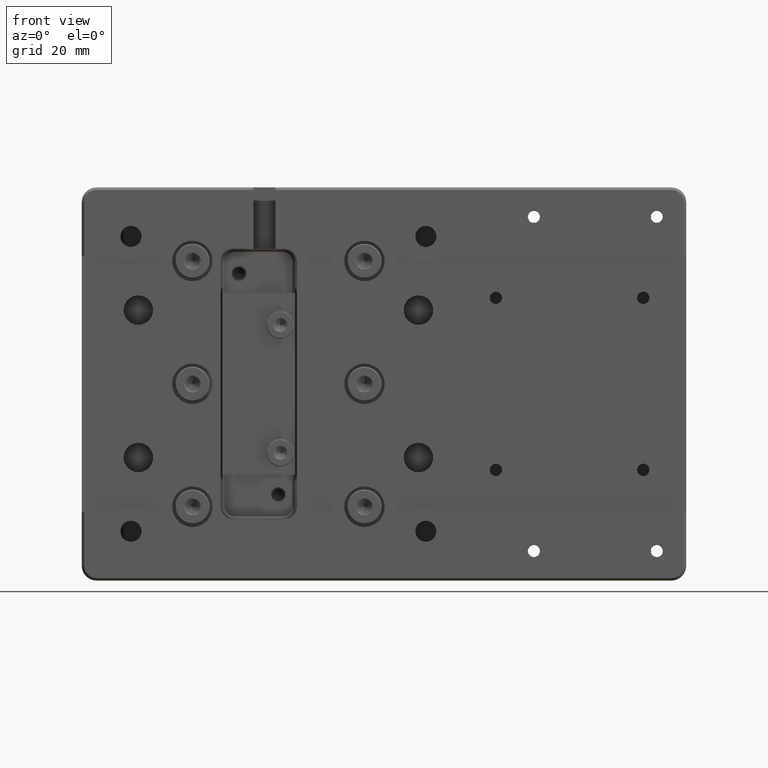
[diagram: clean part render]
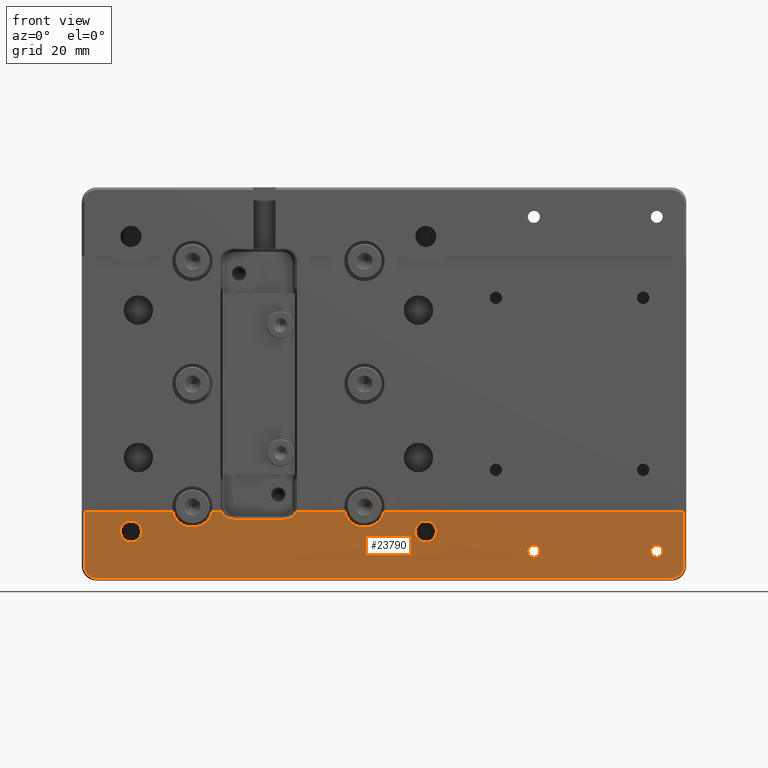
[diagram: same view with one face highlighted and labeled with its STEP entity id]
A machine part, front view. The second image highlights one B-rep face of the part: STEP entity #23790.
In plain terms, the highlighted planar face has unit normal (0, -1, 0).
Its self-contained STEP definition (entity closure, byte-faithful):
#264 = EDGE_CURVE ( 'NONE', #26858, #57207, #11762, .T. ) ;
#477 = VERTEX_POINT ( 'NONE', #22711 ) ;
#636 = CARTESIAN_POINT ( 'NONE',  ( -27.85000000000000500, -8.000000000000000000, -30.00000000000000000 ) ) ;
#922 = B_SPLINE_CURVE_WITH_KNOTS ( 'NONE', 3,
 ( #52332, #47263, #57407, #27253 ),
 .UNSPECIFIED., .F., .F.,
 ( 4, 4 ),
 ( 0.0000000000000000000, 1.000000000000000000 ),
 .UNSPECIFIED. ) ;
#1084 = ORIENTED_EDGE ( 'NONE', *, *, #34701, .T. ) ;
#1169 = CARTESIAN_POINT ( 'NONE',  ( 78.25000000000000000, -8.000000000000000000, -33.83405053889261900 ) ) ;
#1231 = CARTESIAN_POINT ( 'NONE',  ( 78.25000000000000000, -8.000000000000000000, -34.00000000000000000 ) ) ;
#1264 = ORIENTED_EDGE ( 'NONE', *, *, #53587, .T. ) ;
#1401 = CARTESIAN_POINT ( 'NONE',  ( -39.49999842881397400, -8.000000000000000000, -37.33133440661036000 ) ) ;
#1502 = CARTESIAN_POINT ( 'NONE',  ( -32.09544699829974900, -8.000000000000001800, -30.55955342919467200 ) ) ;
#1730 = CARTESIAN_POINT ( 'NONE',  ( 53.00078496853810600, -8.000000000000000000, -34.76687973169981700 ) ) ;
#2024 = ORIENTED_EDGE ( 'NONE', *, *, #56547, .T. ) ;
#2080 = ORIENTED_EDGE ( 'NONE', *, *, #47686, .T. ) ;
#2094 = VERTEX_POINT ( 'NONE', #35768 ) ;
#2172 = CARTESIAN_POINT ( 'NONE',  ( -15.32347828787214200, -8.000000000000000000, -28.53414124494987200 ) ) ;
#2256 = CARTESIAN_POINT ( 'NONE',  ( -28.27842760289007600, -8.000000000000001800, -31.31888441265888500 ) ) ;
#2509 = B_SPLINE_CURVE_WITH_KNOTS ( 'NONE', 3,
 ( #43875, #53985, #28899, #64161, #33961, #3762, #39039, #8844, #44092, #13924 ),
 .UNSPECIFIED., .F., .F.,
 ( 4, 2, 2, 2, 4 ),
 ( 0.0000000000000000000, 0.2500000000000000000, 0.5000000000000000000, 0.7500000000000000000, 1.000000000000000000 ),
 .UNSPECIFIED. ) ;
#2602 = CARTESIAN_POINT ( 'NONE',  ( 28.91401467003015600, -8.000000000000000000, -28.12276500850121200 ) ) ;
#2650 = CARTESIAN_POINT ( 'NONE',  ( 82.49999999888667900, -8.000000001109997400, 38.47999999999999700 ) ) ;
#2870 = CARTESIAN_POINT ( 'NONE',  ( 75.75000000000000000, -8.000000000000000000, -34.00000000000000000 ) ) ;
#3429 = VERTEX_POINT ( 'NONE', #49782 ) ;
#3699 = AXIS2_PLACEMENT_3D ( 'NONE', #36286, #26394, #61656 ) ;
#3722 = CARTESIAN_POINT ( 'NONE',  ( 50.90858430726818500, -8.000000000000000000, -34.63130768965732600 ) ) ;
#3762 = CARTESIAN_POINT ( 'NONE',  ( 75.99911277873226800, -8.000000000000001800, -34.76698198442281300 ) ) ;
#4151 = CARTESIAN_POINT ( 'NONE',  ( 50.75000000000001400, -8.000000000000000000, -34.00000000000000700 ) ) ;
#4443 = CARTESIAN_POINT ( 'NONE',  ( 30.28529696934277000, -7.999999999999996400, -32.14999999999999100 ) ) ;
#4494 = CARTESIAN_POINT ( 'NONE',  ( -31.31898676200157200, -8.000000000000001800, -28.27832525356152600 ) ) ;
#4649 = VECTOR ( 'NONE', #38592, 1000.000000000000000 ) ;
#4693 = B_SPLINE_CURVE_WITH_KNOTS ( 'NONE', 3,
 ( #19330, #64715, #39579, #9390, #44643, #14462, #49653, #19558, #54730, #24589 ),
 .UNSPECIFIED., .F., .F.,
 ( 4, 2, 2, 2, 4 ),
 ( 0.0000000000000000000, 0.2500000000000000000, 0.5000000000000000000, 0.7500000000000000000, 1.000000000000000000 ),
 .UNSPECIFIED. ) ;
#4785 = EDGE_LOOP ( 'NONE', ( #22718, #48892, #51809, #47670 ) ) ;
#4857 = CARTESIAN_POINT ( 'NONE',  ( 32.09544699829974900, -8.000000000000001800, -29.44044657080439400 ) ) ;
#4881 = ORIENTED_EDGE ( 'NONE', *, *, #12487, .T. ) ;
#5226 = CARTESIAN_POINT ( 'NONE',  ( 27.85000000000000100, -8.000000000000000000, -29.99999999999999300 ) ) ;
#5397 = CARTESIAN_POINT ( 'NONE',  ( -42.46000000000001500, -8.000000001111113000, -26.00000000000000700 ) ) ;
#5546 = CARTESIAN_POINT ( 'NONE',  ( -30.00000000000000700, -8.000000000000000000, -27.85000000000000500 ) ) ;
#5933 = CARTESIAN_POINT ( 'NONE',  ( 29.44032691938960500, -8.000000000000000000, -32.09524071535818700 ) ) ;
#5941 = DIRECTION ( 'NONE',  ( 0.0000000000000000000, 1.000000000000000000, 0.0000000000000000000 ) ) ;
#6232 = LINE ( 'NONE', #53764, #4649 ) ;
#6336 = CARTESIAN_POINT ( 'NONE',  ( 52.00000000000001400, -8.000000000000000000, -32.75000000000001400 ) ) ;
#6451 = VERTEX_POINT ( 'NONE', #5226 ) ;
#6608 = B_SPLINE_CURVE_WITH_KNOTS ( 'NONE', 3,
 ( #46712, #11486, #21613, #56851, #26681, #61956, #31713, #1502, #36815, #6610 ),
 .UNSPECIFIED., .F., .F.,
 ( 4, 2, 2, 2, 4 ),
 ( 0.0000000000000000000, 0.2500000000000000000, 0.5000000000000000000, 0.7500000000000000000, 1.000000000000000000 ),
 .UNSPECIFIED. ) ;
#6610 = CARTESIAN_POINT ( 'NONE',  ( -32.14999999999999900, -8.000000000000000000, -30.00000000000000000 ) ) ;
#6854 = CARTESIAN_POINT ( 'NONE',  ( 52.63130768965471900, -8.000000000000000000, -35.09141569273184300 ) ) ;
#6914 = B_SPLINE_CURVE_WITH_KNOTS ( 'NONE', 3,
 ( #19528, #59825, #29611, #64889, #34688, #4494, #39758, #9584, #44820, #14650 ),
 .UNSPECIFIED., .F., .F.,
 ( 4, 2, 2, 2, 4 ),
 ( 0.0000000000000000000, 0.2500000000000000000, 0.5000000000000000000, 0.7500000000000000000, 1.000000000000000000 ),
 .UNSPECIFIED. ) ;
#7144 = VERTEX_POINT ( 'NONE', #39498 ) ;
#7146 = CARTESIAN_POINT ( 'NONE',  ( -27.85000000000000500, -8.000000000000000000, -30.00000000000000000 ) ) ;
#7284 = CARTESIAN_POINT ( 'NONE',  ( -16.59231533455584500, -8.000000000000000000, -29.05014597505759600 ) ) ;
#7371 = CARTESIAN_POINT ( 'NONE',  ( -28.91401467003104000, -8.000000000000000000, -31.87723499149876400 ) ) ;
#7482 = B_SPLINE_CURVE_WITH_KNOTS ( 'NONE', 3,
 ( #16237, #16008, #31161, #21275, #56515, #26351, #61615, #31385, #1169, #36465 ),
 .UNSPECIFIED., .F., .F.,
 ( 4, 2, 2, 2, 4 ),
 ( 0.0000000000000000000, 0.2500000000000000000, 0.5000000000000000000, 0.7500000000000000000, 1.000000000000000000 ),
 .UNSPECIFIED. ) ;
#7729 = CARTESIAN_POINT ( 'NONE',  ( -9.250000000000001800, -8.000000000000000000, -27.49999999999999600 ) ) ;
#7731 = CARTESIAN_POINT ( 'NONE',  ( 29.71470303066162100, -8.000000000000000000, -27.85000000000000500 ) ) ;
#7822 = CARTESIAN_POINT ( 'NONE',  ( 77.00000000000000000, -8.000000000000000000, -32.75000000000000000 ) ) ;
#8035 = LINE ( 'NONE', #49678, #46646 ) ;
#8525 = EDGE_CURVE ( 'NONE', #26800, #9971, #7482, .T. ) ;
#8596 = B_SPLINE_CURVE_WITH_KNOTS ( 'NONE', 3,
 ( #59042, #23789, #8800, #44053, #13880, #49085, #18954, #54162, #23996, #59268 ),
 .UNSPECIFIED., .F., .F.,
 ( 4, 2, 2, 2, 4 ),
 ( 0.0000000000000000000, 0.2500000000000000000, 0.5000000000000000000, 0.7500000000000000000, 1.000000000000000000 ),
 .UNSPECIFIED. ) ;
#8770 = ORIENTED_EDGE ( 'NONE', *, *, #57056, .T. ) ;
#8800 = CARTESIAN_POINT ( 'NONE',  ( 80.65103295197731400, -8.000000000000000000, -39.43615767142841800 ) ) ;
#8802 = CARTESIAN_POINT ( 'NONE',  ( 50.75000000000000000, -8.000000000000000000, -34.16594946110331000 ) ) ;
#8844 = CARTESIAN_POINT ( 'NONE',  ( 75.78171686145363100, -8.000000000000001800, -34.32540089126057100 ) ) ;
#8853 = CARTESIAN_POINT ( 'NONE',  ( 30.28491825143137100, -8.000000000000000000, -27.85000000000000900 ) ) ;
#9029 = B_SPLINE_CURVE_WITH_KNOTS ( 'NONE', 3,
 ( #4151, #64562, #9248, #44493, #14317, #49517, #19407, #54585, #24441, #59709 ),
 .UNSPECIFIED., .F., .F.,
 ( 4, 2, 2, 2, 4 ),
 ( 0.0000000000000000000, 0.2500000000000000000, 0.5000000000000000000, 0.7500000000000000000, 1.000000000000000000 ),
 .UNSPECIFIED. ) ;
#9248 = CARTESIAN_POINT ( 'NONE',  ( 50.78192308318168800, -8.000000000000000000, -33.67447933880629300 ) ) ;
#9290 = CARTESIAN_POINT ( 'NONE',  ( 78.25000000000000000, -8.000000000000000000, -34.00000000000000000 ) ) ;
#9390 = CARTESIAN_POINT ( 'NONE',  ( 75.90837808553797600, -7.999999999999998200, -33.36881208028100300 ) ) ;
#9500 = CARTESIAN_POINT ( 'NONE',  ( 78.21807691681907200, -8.000000000000000000, -34.32552066119193100 ) ) ;
#9579 = ORIENTED_EDGE ( 'NONE', *, *, #19406, .T. ) ;
#9584 = CARTESIAN_POINT ( 'NONE',  ( -30.55955342920315200, -8.000000000000001800, -27.90455300170025100 ) ) ;
#9949 = CARTESIAN_POINT ( 'NONE',  ( 32.14999999999999900, -8.000000000000000000, -30.00000000000000000 ) ) ;
#9971 = VERTEX_POINT ( 'NONE', #1231 ) ;
#10203 = ORIENTED_EDGE ( 'NONE', *, *, #42687, .T. ) ;
#10575 = AXIS2_PLACEMENT_3D ( 'NONE', #36130, #5941, #41203 ) ;
#11018 = CARTESIAN_POINT ( 'NONE',  ( 28.68111558734297600, -8.000000000000000000, -31.72157239710903600 ) ) ;
#11102 = ORIENTED_EDGE ( 'NONE', *, *, #59682, .T. ) ;
#11486 = CARTESIAN_POINT ( 'NONE',  ( -30.28491825143669300, -8.000000000000000000, -32.15000000000000600 ) ) ;
#11762 = CIRCLE ( 'NONE', #10575, 2.499999999999998700 ) ;
#11937 = CARTESIAN_POINT ( 'NONE',  ( 52.16594946110588900, -8.000000000000000000, -35.25000000000000000 ) ) ;
#11973 = VERTEX_POINT ( 'NONE', #49333 ) ;
#12035 = CARTESIAN_POINT ( 'NONE',  ( 17.50000000000000400, -8.000000000000000000, -29.12500000000000400 ) ) ;
#12358 = CARTESIAN_POINT ( 'NONE',  ( -17.50000000000000400, -8.000000000000000000, -29.12500000000000000 ) ) ;
#12438 = CARTESIAN_POINT ( 'NONE',  ( -29.71470303066071500, -7.999999999999996400, -32.14999999999999100 ) ) ;
#12487 = EDGE_CURVE ( 'NONE', #15953, #39027, #8035, .T. ) ;
#12503 = CARTESIAN_POINT ( 'NONE',  ( -17.50000000000000400, -8.000000000000000000, -29.12500000000000000 ) ) ;
#12577 = VERTEX_POINT ( 'NONE', #60525 ) ;
#12685 = VERTEX_POINT ( 'NONE', #12035 ) ;
#12715 = CARTESIAN_POINT ( 'NONE',  ( -19.27710514521236700, -7.999999999999998200, -28.75090634453529500 ) ) ;
#12782 = CARTESIAN_POINT ( 'NONE',  ( -9.729921648056249600, -8.000000000000000000, -27.46486262327339000 ) ) ;
#12923 = ORIENTED_EDGE ( 'NONE', *, *, #43938, .F. ) ;
#12975 = FACE_BOUND ( 'NONE', #53450, .T. ) ;
#13455 = CARTESIAN_POINT ( 'NONE',  ( -41.93999999999999100, -8.000000000000000000, -27.50000000000001800 ) ) ;
#13532 = CARTESIAN_POINT ( 'NONE',  ( -29.71508174856903000, -8.000000000000000000, -27.85000000000000500 ) ) ;
#13619 = VECTOR ( 'NONE', #40657, 1000.000000000000000 ) ;
#13880 = CARTESIAN_POINT ( 'NONE',  ( 81.53375312414756600, -8.000000000000000000, -39.00157676061651600 ) ) ;
#13924 = CARTESIAN_POINT ( 'NONE',  ( 75.75000000000000000, -8.000000000000000000, -34.00000000000000000 ) ) ;
#14317 = CARTESIAN_POINT ( 'NONE',  ( 50.99921503146009600, -8.000000000000000000, -33.23312026830093700 ) ) ;
#14377 = CARTESIAN_POINT ( 'NONE',  ( 32.15000000000000600, -7.999999999999998200, -30.28491825143761700 ) ) ;
#14462 = CARTESIAN_POINT ( 'NONE',  ( 76.23301801557718700, -8.000000000000001800, -32.99911277873120200 ) ) ;
#14488 = DIRECTION ( 'NONE',  ( -1.000000000000000000, -0.0000000000000000000, -0.0000000000000000000 ) ) ;
#14571 = CARTESIAN_POINT ( 'NONE',  ( 78.00078496853993200, -8.000000000000000000, -34.76687973170016500 ) ) ;
#14650 = CARTESIAN_POINT ( 'NONE',  ( -30.00000000000000700, -8.000000000000000000, -27.85000000000000500 ) ) ;
#14697 = CIRCLE ( 'NONE', #60446, 4.125000000000003600 ) ;
#14801 = CARTESIAN_POINT ( 'NONE',  ( 30.00000000000000000, -8.000000000000000000, -27.84999999999999800 ) ) ;
#15207 = LINE ( 'NONE', #5397, #13619 ) ;
#15953 = VERTEX_POINT ( 'NONE', #52801 ) ;
#15983 = CARTESIAN_POINT ( 'NONE',  ( 17.50000000000000400, -8.000000000000000000, -25.00000000000000000 ) ) ;
#16008 = CARTESIAN_POINT ( 'NONE',  ( 77.16557075150917900, -8.000000000000000000, -32.75000000000000000 ) ) ;
#16097 = CARTESIAN_POINT ( 'NONE',  ( 28.12276500850123300, -8.000000000000000000, -31.08598532997428500 ) ) ;
#16237 = CARTESIAN_POINT ( 'NONE',  ( 77.00000000000000000, -8.000000000000000000, -32.75000000000000000 ) ) ;
#16395 = CARTESIAN_POINT ( 'NONE',  ( -29.99999999999999300, -8.000000000000000000, -32.14999999999999900 ) ) ;
#16444 = EDGE_CURVE ( 'NONE', #48194, #39159, #32800, .T. ) ;
#16513 = CARTESIAN_POINT ( 'NONE',  ( 52.63118791972155500, -7.999999999999998200, -32.90837808554162800 ) ) ;
#16549 = ORIENTED_EDGE ( 'NONE', *, *, #57709, .T. ) ;
#16640 = B_SPLINE_CURVE_WITH_KNOTS ( 'NONE', 3,
 ( #49571, #14377, #54644, #24497, #59766, #29551, #64838, #34624, #4443, #39699 ),
 .UNSPECIFIED., .F., .F.,
 ( 4, 2, 2, 2, 4 ),
 ( 0.0000000000000000000, 0.2499999999999978400, 0.4999999999999956700, 0.7499999999999977800, 1.000000000000000000 ),
 .UNSPECIFIED. ) ;
#16687 = CARTESIAN_POINT ( 'NONE',  ( -39.18303635358361700, -7.999999999999998200, -38.26268403337815000 ) ) ;
#17656 = CARTESIAN_POINT ( 'NONE',  ( 27.85000000000000100, -8.000000000000000000, -29.71508174857124000 ) ) ;
#17815 = CARTESIAN_POINT ( 'NONE',  ( -20.40107738252046900, -8.000000000000001800, -27.96835832123629800 ) ) ;
#17880 = CARTESIAN_POINT ( 'NONE',  ( -10.41750678340656600, -8.000000000000000000, -27.22369639464043400 ) ) ;
#18234 = CARTESIAN_POINT ( 'NONE',  ( -39.50000297982249000, -7.999998942642501600, -25.99999999999957400 ) ) ;
#18505 = ORIENTED_EDGE ( 'NONE', *, *, #56333, .T. ) ;
#18578 = VERTEX_POINT ( 'NONE', #26154 ) ;
#18634 = CARTESIAN_POINT ( 'NONE',  ( -28.91413432144962300, -7.999999999999998200, -28.12255872555237000 ) ) ;
#18752 = CARTESIAN_POINT ( 'NONE',  ( 52.00000000000001400, -8.000000000000000000, -35.24999999999999300 ) ) ;
#18954 = CARTESIAN_POINT ( 'NONE',  ( 82.18283144103574500, -8.000000000000000000, -38.26261626031302400 ) ) ;
#19318 = VERTEX_POINT ( 'NONE', #2870 ) ;
#19330 = CARTESIAN_POINT ( 'NONE',  ( 75.75000000000000000, -8.000000000000000000, -34.00000000000000000 ) ) ;
#19406 = EDGE_CURVE ( 'NONE', #18578, #477, #6232, .T. ) ;
#19407 = CARTESIAN_POINT ( 'NONE',  ( 51.36869231034531000, -8.000000000000000000, -32.90858430726815700 ) ) ;
#19528 = CARTESIAN_POINT ( 'NONE',  ( -32.14999999999999900, -8.000000000000000000, -30.00000000000000000 ) ) ;
#19558 = CARTESIAN_POINT ( 'NONE',  ( 76.67459910874200100, -8.000000000000001800, -32.78171686145362400 ) ) ;
#19654 = CARTESIAN_POINT ( 'NONE',  ( 77.63130768965210400, -8.000000000000000000, -35.09141569273187100 ) ) ;
#21031 = DIRECTION ( 'NONE',  ( 1.682156097916902400E-015, 0.0000000000000000000, -1.000000000000000000 ) ) ;
#21146 = CARTESIAN_POINT ( 'NONE',  ( 27.85000000000000500, -8.000000000000000000, -30.28529696933394500 ) ) ;
#21275 = CARTESIAN_POINT ( 'NONE',  ( 77.63118791971791700, -7.999999999999998200, -32.90837808553906300 ) ) ;
#21313 = PLANE ( 'NONE',  #3699 ) ;
#21323 = EDGE_CURVE ( 'NONE', #62964, #64868, #922, .T. ) ;
#21556 = CARTESIAN_POINT ( 'NONE',  ( 53.00088722127426900, -8.000000000000001800, -33.23301801558159200 ) ) ;
#21613 = CARTESIAN_POINT ( 'NONE',  ( -30.55967308061547500, -8.000000000000000000, -32.09524071535495400 ) ) ;
#21748 = CARTESIAN_POINT ( 'NONE',  ( -38.53365434592690500, -8.000000000000001800, -39.00197977923044600 ) ) ;
#22711 = CARTESIAN_POINT ( 'NONE',  ( -13.49804735160377300, -8.000000000000000000, -25.99999999999943900 ) ) ;
#22718 = ORIENTED_EDGE ( 'NONE', *, *, #32635, .T. ) ;
#22840 = B_SPLINE_CURVE_WITH_KNOTS ( 'NONE', 3,
 ( #61266, #26012, #5933, #41189, #11018, #46258, #16097, #51285, #21146, #56379 ),
 .UNSPECIFIED., .F., .F.,
 ( 4, 2, 2, 2, 4 ),
 ( 0.0000000000000000000, 0.2500000000000000000, 0.5000000000000000000, 0.7500000000000000000, 1.000000000000000000 ),
 .UNSPECIFIED. ) ;
#22868 = CARTESIAN_POINT ( 'NONE',  ( -21.20928672626051900, -8.000000000000001800, -26.86246230929534600 ) ) ;
#22936 = CARTESIAN_POINT ( 'NONE',  ( -11.00147370927861900, -8.000000000000000000, -26.79952825595126200 ) ) ;
#23006 = VERTEX_POINT ( 'NONE', #64187 ) ;
#23075 = EDGE_CURVE ( 'NONE', #7144, #51149, #16640, .T. ) ;
#23541 = VERTEX_POINT ( 'NONE', #44045 ) ;
#23662 = CARTESIAN_POINT ( 'NONE',  ( -28.27832525356087200, -8.000000000000001800, -28.68101323799907100 ) ) ;
#23759 = ORIENTED_EDGE ( 'NONE', *, *, #33699, .T. ) ;
#23789 = CARTESIAN_POINT ( 'NONE',  ( 80.33114915436426900, -8.000000000000000000, -39.49999848250381300 ) ) ;
#23790 = ADVANCED_FACE ( 'NONE', ( #51563, #39763, #24783, #12975, #38205 ), #21313, .T. ) ;
#23979 = VERTEX_POINT ( 'NONE', #33181 ) ;
#23996 = CARTESIAN_POINT ( 'NONE',  ( 82.49999847817703400, -8.000000000000000000, -37.33189706858834000 ) ) ;
#24145 = EDGE_CURVE ( 'NONE', #3429, #40488, #6914, .T. ) ;
#24155 = CARTESIAN_POINT ( 'NONE',  ( 30.00000000000000000, -8.000000000000000000, -27.84999999999999800 ) ) ;
#24233 = B_SPLINE_CURVE_WITH_KNOTS ( 'NONE', 3,
 ( #6336, #36519, #46658, #16513, #51716, #21556, #56790, #26628, #61900, #31663 ),
 .UNSPECIFIED., .F., .F.,
 ( 4, 2, 2, 2, 4 ),
 ( 0.0000000000000000000, 0.2500000000000000000, 0.5000000000000000000, 0.7500000000000000000, 1.000000000000000000 ),
 .UNSPECIFIED. ) ;
#24255 = B_SPLINE_CURVE_WITH_KNOTS ( 'NONE', 3,
 ( #28513, #13532, #48761, #18634, #53824, #23662, #58925, #28731, #64005, #33800 ),
 .UNSPECIFIED., .F., .F.,
 ( 4, 2, 2, 2, 4 ),
 ( 0.0000000000000000000, 0.2500000000000000000, 0.5000000000000000000, 0.7500000000000000000, 1.000000000000000000 ),
 .UNSPECIFIED. ) ;
#24441 = CARTESIAN_POINT ( 'NONE',  ( 51.83405053889411800, -8.000000000000000000, -32.75000000000001400 ) ) ;
#24497 = CARTESIAN_POINT ( 'NONE',  ( 31.87744127444423700, -8.000000000000001800, -31.08586567855192900 ) ) ;
#24589 = CARTESIAN_POINT ( 'NONE',  ( 77.00000000000000000, -8.000000000000000000, -32.75000000000000000 ) ) ;
#24645 = CARTESIAN_POINT ( 'NONE',  ( 17.50000000000000400, -8.000000000000000000, -25.00000000000000000 ) ) ;
#24694 = CARTESIAN_POINT ( 'NONE',  ( 77.16594946110846800, -8.000000000000000000, -35.25000000000000700 ) ) ;
#24783 = FACE_BOUND ( 'NONE', #39550, .T. ) ;
#24926 = CIRCLE ( 'NONE', #47283, 4.125000000000003600 ) ;
#24933 = CARTESIAN_POINT ( 'NONE',  ( 30.55967308061299200, -7.999999999999998200, -27.90475928464622500 ) ) ;
#26012 = CARTESIAN_POINT ( 'NONE',  ( 29.71508174856056100, -8.000000000000000000, -32.14999999999999900 ) ) ;
#26030 = ORIENTED_EDGE ( 'NONE', *, *, #8525, .T. ) ;
#26154 = CARTESIAN_POINT ( 'NONE',  ( -11.54128784747839000, -8.000000000000000000, -25.99999999999951700 ) ) ;
#26351 = CARTESIAN_POINT ( 'NONE',  ( 78.00088722126622500, -8.000000000000001800, -33.23301801557246900 ) ) ;
#26394 = DIRECTION ( 'NONE',  ( 0.0000000000000000000, -1.000000000000000000, 0.0000000000000000000 ) ) ;
#26628 = CARTESIAN_POINT ( 'NONE',  ( 53.21828313854637600, -8.000000000000001800, -33.67459910875078300 ) ) ;
#26681 = CARTESIAN_POINT ( 'NONE',  ( -31.31888441265767800, -8.000000000000000000, -31.72157239710655200 ) ) ;
#26800 = VERTEX_POINT ( 'NONE', #7822 ) ;
#26802 = CARTESIAN_POINT ( 'NONE',  ( -37.65061541438732500, -8.000000000000001800, -39.43656352071509000 ) ) ;
#26858 = VERTEX_POINT ( 'NONE', #58702 ) ;
#26903 = DIRECTION ( 'NONE',  ( -1.000000000000000000, 0.0000000000000000000, -0.0000000000000000000 ) ) ;
#27069 = ORIENTED_EDGE ( 'NONE', *, *, #34746, .T. ) ;
#27253 = CARTESIAN_POINT ( 'NONE',  ( 79.99999999634937400, -8.000010012128520000, -39.50000301223240500 ) ) ;
#27344 = CARTESIAN_POINT ( 'NONE',  ( -13.79091787117619500, -8.000000000000000000, -26.86255316288562200 ) ) ;
#27424 = CARTESIAN_POINT ( 'NONE',  ( -27.85000000000000500, -7.999999999999998200, -30.28491825142876300 ) ) ;
#27609 = ORIENTED_EDGE ( 'NONE', *, *, #31748, .T. ) ;
#27765 = CARTESIAN_POINT ( 'NONE',  ( 28.12255872555340400, -7.999999999999998200, -28.91413432144492300 ) ) ;
#27910 = CARTESIAN_POINT ( 'NONE',  ( -21.50195264839627300, -8.000000000000000000, -25.99999999999930000 ) ) ;
#27979 = CARTESIAN_POINT ( 'NONE',  ( -11.44460989112789100, -8.000000000000000000, -26.22151702650461800 ) ) ;
#28513 = CARTESIAN_POINT ( 'NONE',  ( -30.00000000000000700, -8.000000000000000000, -27.85000000000000500 ) ) ;
#28731 = CARTESIAN_POINT ( 'NONE',  ( -27.90455300170025100, -8.000000000000001800, -29.44044657079775400 ) ) ;
#28859 = CARTESIAN_POINT ( 'NONE',  ( 51.36881208028209000, -7.999999999999998200, -35.09162191446095100 ) ) ;
#28899 = CARTESIAN_POINT ( 'NONE',  ( 76.67447933881065600, -8.000000000000000000, -35.21807691681953400 ) ) ;
#29347 = VERTEX_POINT ( 'NONE', #48542 ) ;
#29551 = CARTESIAN_POINT ( 'NONE',  ( 31.31898676200564700, -8.000000000000001800, -31.72167474643626400 ) ) ;
#29611 = CARTESIAN_POINT ( 'NONE',  ( -32.09524071535246700, -8.000000000000000000, -29.44032691938205600 ) ) ;
#29684 = DIRECTION ( 'NONE',  ( 0.0000000000000000000, 0.0000000000000000000, -1.000000000000000000 ) ) ;
#29798 = EDGE_CURVE ( 'NONE', #57207, #11973, #46706, .T. ) ;
#29954 = CARTESIAN_POINT ( 'NONE',  ( 31.31888441265572700, -8.000000000000000000, -28.27842760288783100 ) ) ;
#30484 = VERTEX_POINT ( 'NONE', #24155 ) ;
#30727 = VERTEX_POINT ( 'NONE', #42857 ) ;
#30948 = EDGE_LOOP ( 'NONE', ( #58991, #64439, #27609, #1264 ) ) ;
#31161 = CARTESIAN_POINT ( 'NONE',  ( 77.32552066119483000, -8.000000000000000000, -32.78192308318273300 ) ) ;
#31385 = CARTESIAN_POINT ( 'NONE',  ( 78.21828313854638300, -8.000000000000001800, -33.67459910874049500 ) ) ;
#31663 = CARTESIAN_POINT ( 'NONE',  ( 53.25000000000000000, -8.000000000000000000, -34.00000000000000000 ) ) ;
#31713 = CARTESIAN_POINT ( 'NONE',  ( -31.87723499149876400, -8.000000000000000000, -31.08598532997522000 ) ) ;
#31748 = EDGE_CURVE ( 'NONE', #61488, #2094, #54234, .T. ) ;
#31833 = CARTESIAN_POINT ( 'NONE',  ( -36.99999999698873400, -8.000010069273843200, -39.50000296321434200 ) ) ;
#31949 = CARTESIAN_POINT ( 'NONE',  ( 53.09162191446061700, -7.999999999999998200, -34.63118791971717100 ) ) ;
#32155 = CARTESIAN_POINT ( 'NONE',  ( 30.00000000000000000, -8.000000000000000000, -32.14999999999999900 ) ) ;
#32382 = CARTESIAN_POINT ( 'NONE',  ( -14.59899770922953600, -7.999999999999998200, -27.96826215686943600 ) ) ;
#32460 = CARTESIAN_POINT ( 'NONE',  ( -28.12255872555405700, -8.000000000000001800, -31.08586567855662600 ) ) ;
#32635 = EDGE_CURVE ( 'NONE', #40488, #48194, #24255, .T. ) ;
#32757 = EDGE_LOOP ( 'NONE', ( #1084, #23759, #4881, #34562, #8770, #63746, #44594, #12923, #38115, #2080, #38956, #11102, #52021, #43752, #41149, #9579 ) ) ;
#32800 = B_SPLINE_CURVE_WITH_KNOTS ( 'NONE', 3,
 ( #7146, #27424, #57583, #32460, #2256, #37575, #7371, #42617, #12438, #47656 ),
 .UNSPECIFIED., .F., .F.,
 ( 4, 2, 2, 2, 4 ),
 ( 0.0000000000000000000, 0.2499999999999978400, 0.4999999999999956700, 0.7499999999999977800, 1.000000000000000000 ),
 .UNSPECIFIED. ) ;
#32832 = CARTESIAN_POINT ( 'NONE',  ( 28.68101323800688000, -8.000000000000001800, -28.27832525355671900 ) ) ;
#33181 = CARTESIAN_POINT ( 'NONE',  ( 21.50195264839669200, -8.000000000555555600, -26.00000000000000700 ) ) ;
#33407 = CARTESIAN_POINT ( 'NONE',  ( -39.50000421843945000, -8.000009208857026300, -36.99999998896900200 ) ) ;
#33699 = EDGE_CURVE ( 'NONE', #30727, #15953, #45842, .T. ) ;
#33800 = CARTESIAN_POINT ( 'NONE',  ( -27.85000000000000500, -8.000000000000000000, -30.00000000000000000 ) ) ;
#33925 = CARTESIAN_POINT ( 'NONE',  ( 50.99911277873090400, -8.000000000000001800, -34.76698198442463200 ) ) ;
#33961 = CARTESIAN_POINT ( 'NONE',  ( 76.23312026830136300, -8.000000000000000000, -35.00078496854354200 ) ) ;
#34562 = ORIENTED_EDGE ( 'NONE', *, *, #53285, .T. ) ;
#34604 = CARTESIAN_POINT ( 'NONE',  ( 78.25000000000000000, -8.000000000000000000, -34.16557075151070000 ) ) ;
#34624 = CARTESIAN_POINT ( 'NONE',  ( 30.55955342920442100, -8.000000000000000000, -32.09544699829974900 ) ) ;
#34688 = CARTESIAN_POINT ( 'NONE',  ( -31.72157239710055900, -8.000000000000000000, -28.68111558733632900 ) ) ;
#34701 = EDGE_CURVE ( 'NONE', #477, #30727, #51310, .T. ) ;
#34746 = EDGE_CURVE ( 'NONE', #6451, #30484, #56405, .T. ) ;
#35038 = CARTESIAN_POINT ( 'NONE',  ( 31.87723499149877800, -8.000000000000001800, -28.91401467002571100 ) ) ;
#35768 = CARTESIAN_POINT ( 'NONE',  ( 50.75000000000001400, -8.000000000000000000, -34.00000000000000700 ) ) ;
#36130 = CARTESIAN_POINT ( 'NONE',  ( 1.250000000000000000, -8.000000000000000000, -25.00000000000000000 ) ) ;
#36286 = CARTESIAN_POINT ( 'NONE',  ( -41.93999999999999100, -8.000000000000000000, -41.07999999999999800 ) ) ;
#36353 = EDGE_CURVE ( 'NONE', #39159, #3429, #6608, .T. ) ;
#36465 = CARTESIAN_POINT ( 'NONE',  ( 78.25000000000000000, -8.000000000000000000, -34.00000000000000000 ) ) ;
#36519 = CARTESIAN_POINT ( 'NONE',  ( 52.16557075151178000, -8.000000000000000000, -32.75000000000001400 ) ) ;
#36706 = CARTESIAN_POINT ( 'NONE',  ( -39.50000421843945000, -8.000009208857026300, -36.99999998896900200 ) ) ;
#36815 = CARTESIAN_POINT ( 'NONE',  ( -32.14999999999999900, -8.000000000000000000, -30.28529696933302500 ) ) ;
#36834 = CARTESIAN_POINT ( 'NONE',  ( 53.24999999999999300, -8.000000000000000000, -34.16557075151066400 ) ) ;
#37057 = CARTESIAN_POINT ( 'NONE',  ( 52.76698198442828400, -8.000000000000001800, -35.00088722126653100 ) ) ;
#37486 = CARTESIAN_POINT ( 'NONE',  ( -15.72275711195312700, -7.999999999999998200, -28.75072987528795900 ) ) ;
#37575 = CARTESIAN_POINT ( 'NONE',  ( -28.68101323800780400, -8.000000000000001800, -31.72167474644328100 ) ) ;
#37916 = CARTESIAN_POINT ( 'NONE',  ( 29.44044657079997400, -8.000000000000001800, -27.90455300170025100 ) ) ;
#38115 = ORIENTED_EDGE ( 'NONE', *, *, #55864, .T. ) ;
#38205 = FACE_BOUND ( 'NONE', #30948, .T. ) ;
#38496 = CARTESIAN_POINT ( 'NONE',  ( -36.99999999698873400, -8.000010069273843200, -39.50000296321434200 ) ) ;
#38592 = DIRECTION ( 'NONE',  ( -1.000000000000000000, -0.0000000000000000000, -0.0000000000000000000 ) ) ;
#38956 = ORIENTED_EDGE ( 'NONE', *, *, #48550, .T. ) ;
#38995 = CARTESIAN_POINT ( 'NONE',  ( 50.78171686145364600, -8.000000000000001800, -34.32540089125542700 ) ) ;
#39027 = VERTEX_POINT ( 'NONE', #50703 ) ;
#39039 = CARTESIAN_POINT ( 'NONE',  ( 75.90858430726817100, -8.000000000000000000, -34.63130768965214700 ) ) ;
#39159 = VERTEX_POINT ( 'NONE', #16395 ) ;
#39498 = CARTESIAN_POINT ( 'NONE',  ( 32.14999999999999900, -8.000000000000000000, -30.00000000000000000 ) ) ;
#39550 = EDGE_LOOP ( 'NONE', ( #10203, #52996, #2024, #27069 ) ) ;
#39579 = CARTESIAN_POINT ( 'NONE',  ( 75.78192308318381300, -8.000000000000000000, -33.67447933880625800 ) ) ;
#39699 = CARTESIAN_POINT ( 'NONE',  ( 30.00000000000000000, -8.000000000000000000, -32.14999999999999900 ) ) ;
#39758 = CARTESIAN_POINT ( 'NONE',  ( -31.08598532996673200, -8.000000000000000000, -28.12276500850121900 ) ) ;
#39763 = FACE_BOUND ( 'NONE', #4785, .T. ) ;
#40113 = CARTESIAN_POINT ( 'NONE',  ( 32.14999999999999100, -7.999999999999998200, -29.71470303066604000 ) ) ;
#40485 = VERTEX_POINT ( 'NONE', #60661 ) ;
#40488 = VERTEX_POINT ( 'NONE', #5546 ) ;
#40657 = DIRECTION ( 'NONE',  ( -1.000000000000000000, 0.0000000000000000000, -0.0000000000000000000 ) ) ;
#41149 = ORIENTED_EDGE ( 'NONE', *, *, #51438, .T. ) ;
#41189 = CARTESIAN_POINT ( 'NONE',  ( 28.91413432144052100, -7.999999999999998200, -31.87744127444034300 ) ) ;
#41203 = DIRECTION ( 'NONE',  ( 0.0000000000000000000, 0.0000000000000000000, 1.000000000000000000 ) ) ;
#41746 = VERTEX_POINT ( 'NONE', #48306 ) ;
#42102 = CARTESIAN_POINT ( 'NONE',  ( 52.32540089125800600, -8.000000000000001800, -35.21828313854636100 ) ) ;
#42534 = CARTESIAN_POINT ( 'NONE',  ( -17.03980326013768800, -8.000000000000000000, -29.12500000000000000 ) ) ;
#42617 = CARTESIAN_POINT ( 'NONE',  ( -29.44044657079907200, -8.000000000000000000, -32.09544699829974200 ) ) ;
#42682 = ORIENTED_EDGE ( 'NONE', *, *, #60320, .T. ) ;
#42687 = EDGE_CURVE ( 'NONE', #30484, #7144, #55206, .T. ) ;
#42857 = CARTESIAN_POINT ( 'NONE',  ( -17.50000000000000400, -8.000000000000000000, -29.12500000000000000 ) ) ;
#42897 = CARTESIAN_POINT ( 'NONE',  ( -18.40782240827867300, -8.000000000000000000, -29.04996950581027100 ) ) ;
#42971 = CARTESIAN_POINT ( 'NONE',  ( 30.00000000000000000, -8.000000000000000000, -27.84999999999999800 ) ) ;
#43506 = CARTESIAN_POINT ( 'NONE',  ( 1.250000000000000200, -8.000000000000000000, -27.50000000000001100 ) ) ;
#43636 = DIRECTION ( 'NONE',  ( -1.000000000000000000, -0.0000000000000000000, -0.0000000000000000000 ) ) ;
#43752 = ORIENTED_EDGE ( 'NONE', *, *, #29798, .T. ) ;
#43875 = CARTESIAN_POINT ( 'NONE',  ( 77.00000000000000000, -8.000000000000000000, -35.25000000000000000 ) ) ;
#43938 = EDGE_CURVE ( 'NONE', #29347, #23541, #56836, .T. ) ;
#44045 = CARTESIAN_POINT ( 'NONE',  ( 82.50000474551863800, -8.000009445465091000, -36.99999998928753100 ) ) ;
#44053 = CARTESIAN_POINT ( 'NONE',  ( 81.26238304687353800, -7.999999999999998200, -39.18323718345912700 ) ) ;
#44054 = CARTESIAN_POINT ( 'NONE',  ( 50.75000000000001400, -8.000000000000000000, -34.00000000000000700 ) ) ;
#44065 = B_SPLINE_CURVE_WITH_KNOTS ( 'NONE', 3,
 ( #18234, #48361, #63624, #33407 ),
 .UNSPECIFIED., .F., .F.,
 ( 4, 4 ),
 ( 0.0000000000000000000, 1.000000000000000000 ),
 .UNSPECIFIED. ) ;
#44092 = CARTESIAN_POINT ( 'NONE',  ( 75.75000000000001400, -8.000000000000000000, -34.16594946110844700 ) ) ;
#44493 = CARTESIAN_POINT ( 'NONE',  ( 50.90837808554012900, -7.999999999999998200, -33.36881208028102500 ) ) ;
#44594 = ORIENTED_EDGE ( 'NONE', *, *, #52969, .T. ) ;
#44643 = CARTESIAN_POINT ( 'NONE',  ( 75.99921503145647300, -8.000000000000000000, -33.23312026830242900 ) ) ;
#44741 = CARTESIAN_POINT ( 'NONE',  ( 78.09162191445912500, -7.999999999999998200, -34.63118791972081600 ) ) ;
#44820 = CARTESIAN_POINT ( 'NONE',  ( -30.28529696934150900, -8.000000000000000000, -27.85000000000001200 ) ) ;
#45006 = VECTOR ( 'NONE', #48272, 1000.000000000000000 ) ;
#45842 = B_SPLINE_CURVE_WITH_KNOTS ( 'NONE', 3,
 ( #12503, #62981, #42897, #12715, #47938, #17815, #53004, #22868, #58105, #27910 ),
 .UNSPECIFIED., .F., .F.,
 ( 4, 2, 2, 2, 4 ),
 ( 0.0000000000000000000, 0.2500000000000000000, 0.5000000000000000000, 0.7500000000000000000, 1.000000000000000000 ),
 .UNSPECIFIED. ) ;
#46258 = CARTESIAN_POINT ( 'NONE',  ( 28.27832525355487500, -8.000000000000001800, -31.31898676199310200 ) ) ;
#46426 = VERTEX_POINT ( 'NONE', #50989 ) ;
#46646 = VECTOR ( 'NONE', #14488, 1000.000000000000000 ) ;
#46658 = CARTESIAN_POINT ( 'NONE',  ( 52.32552066119119200, -8.000000000000000000, -32.78192308318019600 ) ) ;
#46706 = LINE ( 'NONE', #13455, #48275 ) ;
#46709 = CARTESIAN_POINT ( 'NONE',  ( 79.99999999634937400, -8.000010012128520000, -39.50000301223240500 ) ) ;
#46712 = CARTESIAN_POINT ( 'NONE',  ( -29.99999999999999300, -8.000000000000000000, -32.14999999999999900 ) ) ;
#46831 = CARTESIAN_POINT ( 'NONE',  ( -39.43635850130395700, -8.000000000000000000, -37.65073196547275100 ) ) ;
#47152 = CARTESIAN_POINT ( 'NONE',  ( 52.00000000000001400, -8.000000000000000000, -35.24999999999999300 ) ) ;
#47263 = CARTESIAN_POINT ( 'NONE',  ( 2.000000000914305100, -8.000000000000000000, -39.50000215638192500 ) ) ;
#47283 = AXIS2_PLACEMENT_3D ( 'NONE', #15983, #51173, #21031 ) ;
#47356 = CARTESIAN_POINT ( 'NONE',  ( -13.49804735160377300, -8.000000000000000000, -25.99999999999943900 ) ) ;
#47656 = CARTESIAN_POINT ( 'NONE',  ( -29.99999999999999300, -8.000000000000000000, -32.14999999999999900 ) ) ;
#47670 = ORIENTED_EDGE ( 'NONE', *, *, #24145, .T. ) ;
#47686 = EDGE_CURVE ( 'NONE', #23979, #12685, #24926, .T. ) ;
#47938 = CARTESIAN_POINT ( 'NONE',  ( -19.67644662037786700, -8.000000000000000000, -28.53404508058301300 ) ) ;
#48001 = CARTESIAN_POINT ( 'NONE',  ( -10.19855870808880400, -7.999999999999998200, -27.32521354370144800 ) ) ;
#48194 = VERTEX_POINT ( 'NONE', #636 ) ;
#48272 = DIRECTION ( 'NONE',  ( 0.0000000000000000000, -0.0000000000000000000, -1.000000000000000000 ) ) ;
#48275 = VECTOR ( 'NONE', #43636, 1000.000000000000000 ) ;
#48306 = CARTESIAN_POINT ( 'NONE',  ( 77.00000000000000000, -8.000000000000000000, -35.25000000000000000 ) ) ;
#48361 = CARTESIAN_POINT ( 'NONE',  ( -39.50000384493333200, -8.000000000000000000, -29.66666666344121200 ) ) ;
#48542 = CARTESIAN_POINT ( 'NONE',  ( 82.49999999888739000, -8.000000001110741700, -26.00000000000001100 ) ) ;
#48550 = EDGE_CURVE ( 'NONE', #12685, #12577, #14697, .T. ) ;
#48761 = CARTESIAN_POINT ( 'NONE',  ( -29.44032691938049600, -8.000000000000000000, -27.90475928464909600 ) ) ;
#48878 = CARTESIAN_POINT ( 'NONE',  ( 51.83442924849081400, -8.000000000000000000, -35.25000000000000000 ) ) ;
#48892 = ORIENTED_EDGE ( 'NONE', *, *, #16444, .T. ) ;
#49085 = CARTESIAN_POINT ( 'NONE',  ( 82.00177863288844500, -8.000000000000001800, -38.53395499641946700 ) ) ;
#49333 = CARTESIAN_POINT ( 'NONE',  ( -9.250000000000001800, -8.000000000000000000, -27.49999999999999600 ) ) ;
#49517 = CARTESIAN_POINT ( 'NONE',  ( 51.23301801557356300, -8.000000000000001800, -32.99911277873271600 ) ) ;
#49571 = CARTESIAN_POINT ( 'NONE',  ( 32.14999999999999900, -8.000000000000000000, -30.00000000000000000 ) ) ;
#49653 = CARTESIAN_POINT ( 'NONE',  ( 76.36869231034532400, -8.000000000000000000, -32.90858430726814300 ) ) ;
#49678 = CARTESIAN_POINT ( 'NONE',  ( -41.93999999999999100, -8.000000000000000000, -25.99999999999943200 ) ) ;
#49766 = CARTESIAN_POINT ( 'NONE',  ( 77.76698198442645100, -8.000000000000001800, -35.00088722126622500 ) ) ;
#49782 = CARTESIAN_POINT ( 'NONE',  ( -32.14999999999999900, -8.000000000000000000, -30.00000000000000000 ) ) ;
#50703 = CARTESIAN_POINT ( 'NONE',  ( -39.50000297982249000, -7.999998942642501600, -25.99999999999957400 ) ) ;
#50989 = CARTESIAN_POINT ( 'NONE',  ( 53.25000000000000000, -8.000000000000000000, -34.00000000000000000 ) ) ;
#51149 = VERTEX_POINT ( 'NONE', #32155 ) ;
#51173 = DIRECTION ( 'NONE',  ( -0.0000000000000000000, 1.000000000000000000, -0.0000000000000000000 ) ) ;
#51285 = CARTESIAN_POINT ( 'NONE',  ( 27.90455300170024700, -8.000000000000001800, -30.55955342919559600 ) ) ;
#51310 = B_SPLINE_CURVE_WITH_KNOTS ( 'NONE', 3,
 ( #47356, #52424, #27344, #62614, #32382, #2172, #37486, #7284, #42534, #12358 ),
 .UNSPECIFIED., .F., .F.,
 ( 4, 2, 2, 2, 4 ),
 ( 0.0000000000000000000, 0.2500000000000003900, 0.5000000000000007800, 0.7500000000000003300, 1.000000000000000000 ),
 .UNSPECIFIED. ) ;
#51438 = EDGE_CURVE ( 'NONE', #11973, #18578, #63063, .T. ) ;
#51563 = FACE_OUTER_BOUND ( 'NONE', #32757, .T. ) ;
#51716 = CARTESIAN_POINT ( 'NONE',  ( 52.76687973169210000, -8.000000000000000000, -32.99921503145206000 ) ) ;
#51809 = ORIENTED_EDGE ( 'NONE', *, *, #36353, .T. ) ;
#51879 = CARTESIAN_POINT ( 'NONE',  ( -39.00187741110909200, -8.000000000000000000, -38.53355197780555100 ) ) ;
#52021 = ORIENTED_EDGE ( 'NONE', *, *, #264, .T. ) ;
#52332 = CARTESIAN_POINT ( 'NONE',  ( -36.99999999698873400, -8.000010069273843200, -39.50000296321434200 ) ) ;
#52424 = CARTESIAN_POINT ( 'NONE',  ( -13.60951924056860200, -8.000000000000001800, -26.44610522126209400 ) ) ;
#52801 = CARTESIAN_POINT ( 'NONE',  ( -21.50195264839627300, -8.000000000000000000, -25.99999999999930000 ) ) ;
#52843 = EDGE_CURVE ( 'NONE', #46426, #61488, #53749, .T. ) ;
#52860 = CARTESIAN_POINT ( 'NONE',  ( 27.85000000000000100, -8.000000000000000000, -29.99999999999999300 ) ) ;
#52969 = EDGE_CURVE ( 'NONE', #64868, #23541, #8596, .T. ) ;
#52996 = ORIENTED_EDGE ( 'NONE', *, *, #23075, .T. ) ;
#53004 = CARTESIAN_POINT ( 'NONE',  ( -20.70800011388713800, -8.000000000000000000, -27.63349618374263600 ) ) ;
#53075 = CARTESIAN_POINT ( 'NONE',  ( -10.82110600411996700, -8.000000000000001800, -26.95960373802948600 ) ) ;
#53193 = VECTOR ( 'NONE', #26903, 1000.000000000000000 ) ;
#53285 = EDGE_CURVE ( 'NONE', #39027, #23006, #44065, .T. ) ;
#53450 = EDGE_LOOP ( 'NONE', ( #26030, #16549, #18505, #42682 ) ) ;
#53587 = EDGE_CURVE ( 'NONE', #2094, #40485, #9029, .T. ) ;
#53624 = B_SPLINE_CURVE_WITH_KNOTS ( 'NONE', 3,
 ( #9290, #34604, #9500, #44741, #14571, #49766, #19654, #54848, #24694, #59958 ),
 .UNSPECIFIED., .F., .F.,
 ( 4, 2, 2, 2, 4 ),
 ( 0.0000000000000000000, 0.2500000000000000000, 0.5000000000000000000, 0.7500000000000000000, 1.000000000000000000 ),
 .UNSPECIFIED. ) ;
#53732 = EDGE_CURVE ( 'NONE', #40485, #46426, #24233, .T. ) ;
#53749 = B_SPLINE_CURVE_WITH_KNOTS ( 'NONE', 3,
 ( #57080, #36834, #62186, #31949, #1730, #37057, #6854, #42102, #11937, #47152 ),
 .UNSPECIFIED., .F., .F.,
 ( 4, 2, 2, 2, 4 ),
 ( 0.0000000000000000000, 0.2500000000000000000, 0.5000000000000000000, 0.7500000000000000000, 1.000000000000000000 ),
 .UNSPECIFIED. ) ;
#53764 = CARTESIAN_POINT ( 'NONE',  ( -41.93999999999999100, -8.000000000000000000, -25.99999999999961300 ) ) ;
#53824 = CARTESIAN_POINT ( 'NONE',  ( -28.68111558733697900, -8.000000000000000000, -28.27842760289878400 ) ) ;
#53985 = CARTESIAN_POINT ( 'NONE',  ( 76.83442924849080700, -8.000000000000000000, -35.25000000000000700 ) ) ;
#54162 = CARTESIAN_POINT ( 'NONE',  ( 82.43656341385178600, -8.000000000000001800, -37.65079973853788400 ) ) ;
#54234 = B_SPLINE_CURVE_WITH_KNOTS ( 'NONE', 3,
 ( #18752, #48878, #59043, #28859, #64128, #33925, #3722, #38995, #8802, #44054 ),
 .UNSPECIFIED., .F., .F.,
 ( 4, 2, 2, 2, 4 ),
 ( 0.0000000000000000000, 0.2500000000000000000, 0.5000000000000000000, 0.7500000000000000000, 1.000000000000000000 ),
 .UNSPECIFIED. ) ;
#54585 = CARTESIAN_POINT ( 'NONE',  ( 51.67459910874200100, -8.000000000000001800, -32.78171686145363900 ) ) ;
#54644 = CARTESIAN_POINT ( 'NONE',  ( 32.09524071535429400, -8.000000000000000000, -30.55967308061796200 ) ) ;
#54730 = CARTESIAN_POINT ( 'NONE',  ( 76.83405053889411800, -8.000000000000000000, -32.75000000000000000 ) ) ;
#54746 = LINE ( 'NONE', #57070, #53193 ) ;
#54848 = CARTESIAN_POINT ( 'NONE',  ( 77.32540089126060000, -8.000000000000001800, -35.21828313854637600 ) ) ;
#55206 = B_SPLINE_CURVE_WITH_KNOTS ( 'NONE', 3,
 ( #14801, #8853, #24933, #60169, #29954, #65246, #35038, #4857, #40113, #9949 ),
 .UNSPECIFIED., .F., .F.,
 ( 4, 2, 2, 2, 4 ),
 ( 0.0000000000000000000, 0.2500000000000021600, 0.5000000000000043300, 0.7500000000000021100, 1.000000000000000000 ),
 .UNSPECIFIED. ) ;
#55864 = EDGE_CURVE ( 'NONE', #29347, #23979, #15207, .T. ) ;
#56333 = EDGE_CURVE ( 'NONE', #41746, #19318, #2509, .T. ) ;
#56379 = CARTESIAN_POINT ( 'NONE',  ( 27.85000000000000100, -8.000000000000000000, -29.99999999999999300 ) ) ;
#56405 = B_SPLINE_CURVE_WITH_KNOTS ( 'NONE', 3,
 ( #52860, #17656, #57945, #27765, #63038, #32832, #2602, #37916, #7731, #42971 ),
 .UNSPECIFIED., .F., .F.,
 ( 4, 2, 2, 2, 4 ),
 ( 0.0000000000000000000, 0.2500000000000000000, 0.5000000000000000000, 0.7500000000000000000, 1.000000000000000000 ),
 .UNSPECIFIED. ) ;
#56515 = CARTESIAN_POINT ( 'NONE',  ( 77.76687973170020000, -8.000000000000000000, -32.99921503146117600 ) ) ;
#56547 = EDGE_CURVE ( 'NONE', #51149, #6451, #22840, .T. ) ;
#56790 = CARTESIAN_POINT ( 'NONE',  ( 53.09141569273183600, -8.000000000000000000, -33.36869231033649900 ) ) ;
#56836 = LINE ( 'NONE', #2650, #45006 ) ;
#56851 = CARTESIAN_POINT ( 'NONE',  ( -31.08586567855439900, -7.999999999999998200, -31.87744127444358000 ) ) ;
#56966 = CARTESIAN_POINT ( 'NONE',  ( -38.26280058446359800, -8.000000000000000000, -39.18283133417244100 ) ) ;
#57056 = EDGE_CURVE ( 'NONE', #23006, #62964, #63372, .T. ) ;
#57070 = CARTESIAN_POINT ( 'NONE',  ( -42.46000000000001500, -8.000000000000000000, -26.00000000000000700 ) ) ;
#57080 = CARTESIAN_POINT ( 'NONE',  ( 53.25000000000000000, -8.000000000000000000, -34.00000000000000000 ) ) ;
#57207 = VERTEX_POINT ( 'NONE', #43506 ) ;
#57282 = CARTESIAN_POINT ( 'NONE',  ( 52.00000000000001400, -8.000000000000000000, -35.24999999999999300 ) ) ;
#57407 = CARTESIAN_POINT ( 'NONE',  ( 40.99999999874431500, -8.000000000000000000, -39.50000215638192500 ) ) ;
#57583 = CARTESIAN_POINT ( 'NONE',  ( -27.90475928464741500, -8.000000000000000000, -30.55967308061326200 ) ) ;
#57709 = EDGE_CURVE ( 'NONE', #9971, #41746, #53624, .T. ) ;
#57943 = CARTESIAN_POINT ( 'NONE',  ( -9.491337976811822200, -8.000000000000000000, -27.49999999999999300 ) ) ;
#57945 = CARTESIAN_POINT ( 'NONE',  ( 27.90475928464806200, -8.000000000000000000, -29.44032691938518200 ) ) ;
#58105 = CARTESIAN_POINT ( 'NONE',  ( -21.39038980236817600, -8.000000000000000000, -26.44646922712216200 ) ) ;
#58170 = CARTESIAN_POINT ( 'NONE',  ( -11.31731147221775300, -8.000000000000001800, -26.42572608299595400 ) ) ;
#58702 = CARTESIAN_POINT ( 'NONE',  ( 3.541287847477948800, -8.000000000000000000, -26.00000000000000700 ) ) ;
#58925 = CARTESIAN_POINT ( 'NONE',  ( -28.12276500850121900, -8.000000000000000000, -28.91401467003234400 ) ) ;
#58991 = ORIENTED_EDGE ( 'NONE', *, *, #53732, .T. ) ;
#59042 = CARTESIAN_POINT ( 'NONE',  ( 79.99999999634937400, -8.000010012128520000, -39.50000301223240500 ) ) ;
#59043 = CARTESIAN_POINT ( 'NONE',  ( 51.67447933880523400, -8.000000000000000000, -35.21807691681727400 ) ) ;
#59268 = CARTESIAN_POINT ( 'NONE',  ( 82.50000474551863800, -8.000009445465091000, -36.99999998928753100 ) ) ;
#59682 = EDGE_CURVE ( 'NONE', #12577, #26858, #54746, .T. ) ;
#59709 = CARTESIAN_POINT ( 'NONE',  ( 52.00000000000001400, -8.000000000000000000, -32.75000000000001400 ) ) ;
#59766 = CARTESIAN_POINT ( 'NONE',  ( 31.72157239709650500, -8.000000000000001800, -31.31888441266592700 ) ) ;
#59825 = CARTESIAN_POINT ( 'NONE',  ( -32.14999999999998400, -8.000000000000000000, -29.71508174856681400 ) ) ;
#59899 = DIRECTION ( 'NONE',  ( -0.0000000000000000000, 1.000000000000000000, -0.0000000000000000000 ) ) ;
#59958 = CARTESIAN_POINT ( 'NONE',  ( 77.00000000000000000, -8.000000000000000000, -35.25000000000000000 ) ) ;
#60169 = CARTESIAN_POINT ( 'NONE',  ( 31.08586567855690300, -8.000000000000000000, -28.12255872555523300 ) ) ;
#60320 = EDGE_CURVE ( 'NONE', #19318, #26800, #4693, .T. ) ;
#60446 = AXIS2_PLACEMENT_3D ( 'NONE', #24645, #59899, #29684 ) ;
#60525 = CARTESIAN_POINT ( 'NONE',  ( 13.49804735160436700, -8.000000000000000000, -25.99999999999958400 ) ) ;
#60661 = CARTESIAN_POINT ( 'NONE',  ( 52.00000000000001400, -8.000000000000000000, -32.75000000000001400 ) ) ;
#61266 = CARTESIAN_POINT ( 'NONE',  ( 30.00000000000000000, -8.000000000000000000, -32.14999999999999900 ) ) ;
#61488 = VERTEX_POINT ( 'NONE', #57282 ) ;
#61615 = CARTESIAN_POINT ( 'NONE',  ( 78.09141569273182900, -8.000000000000000000, -33.36869231034678800 ) ) ;
#61656 = DIRECTION ( 'NONE',  ( 0.0000000000000000000, -0.0000000000000000000, -1.000000000000000000 ) ) ;
#61900 = CARTESIAN_POINT ( 'NONE',  ( 53.25000000000001400, -8.000000000000000000, -33.83405053890291500 ) ) ;
#61956 = CARTESIAN_POINT ( 'NONE',  ( -31.72167474644446700, -8.000000000000001800, -31.31898676199559300 ) ) ;
#62074 = CARTESIAN_POINT ( 'NONE',  ( -37.33171274688406500, -8.000000000000000000, -39.49999843036114600 ) ) ;
#62186 = CARTESIAN_POINT ( 'NONE',  ( 53.21807691681756600, -8.000000000000000000, -34.32552066119554700 ) ) ;
#62614 = CARTESIAN_POINT ( 'NONE',  ( -14.29179528867618200, -7.999999999999998200, -27.63340533015233900 ) ) ;
#62964 = VERTEX_POINT ( 'NONE', #38496 ) ;
#62981 = CARTESIAN_POINT ( 'NONE',  ( -17.95982154198677700, -8.000000000000000000, -29.12500000000000000 ) ) ;
#63038 = CARTESIAN_POINT ( 'NONE',  ( 28.27842760289097200, -8.000000000000000000, -28.68111558734113600 ) ) ;
#63063 = B_SPLINE_CURVE_WITH_KNOTS ( 'NONE', 3,
 ( #7729, #57943, #12782, #48001, #17880, #53075, #22936, #58170, #27979, #63262 ),
 .UNSPECIFIED., .F., .F.,
 ( 4, 2, 2, 2, 4 ),
 ( 0.0000000000000000000, 0.2500000000000000000, 0.5000000000000000000, 0.7500000000000000000, 1.000000000000000000 ),
 .UNSPECIFIED. ) ;
#63262 = CARTESIAN_POINT ( 'NONE',  ( -11.54128784747839000, -8.000000000000000000, -25.99999999999951700 ) ) ;
#63372 = B_SPLINE_CURVE_WITH_KNOTS ( 'NONE', 3,
 ( #36706, #1401, #46831, #16687, #51879, #21748, #56966, #26802, #62074, #31833 ),
 .UNSPECIFIED., .F., .F.,
 ( 4, 2, 2, 2, 4 ),
 ( 0.0000000000000000000, 0.2500000000000000000, 0.5000000000000000000, 0.7500000000000000000, 1.000000000000000000 ),
 .UNSPECIFIED. ) ;
#63624 = CARTESIAN_POINT ( 'NONE',  ( -39.50000384493333200, -8.000000000000000000, -33.33333332688299300 ) ) ;
#63746 = ORIENTED_EDGE ( 'NONE', *, *, #21323, .T. ) ;
#64005 = CARTESIAN_POINT ( 'NONE',  ( -27.85000000000001200, -8.000000000000000000, -29.71470303065940400 ) ) ;
#64128 = CARTESIAN_POINT ( 'NONE',  ( 51.23312026830274800, -8.000000000000000000, -35.00078496854174400 ) ) ;
#64161 = CARTESIAN_POINT ( 'NONE',  ( 76.36881208027661200, -7.999999999999998200, -35.09162191445868500 ) ) ;
#64187 = CARTESIAN_POINT ( 'NONE',  ( -39.50000421843945000, -8.000009208857026300, -36.99999998896900200 ) ) ;
#64439 = ORIENTED_EDGE ( 'NONE', *, *, #52843, .T. ) ;
#64562 = CARTESIAN_POINT ( 'NONE',  ( 50.74999999999999300, -8.000000000000000000, -33.83442924848933600 ) ) ;
#64715 = CARTESIAN_POINT ( 'NONE',  ( 75.75000000000000000, -8.000000000000000000, -33.83442924849445900 ) ) ;
#64838 = CARTESIAN_POINT ( 'NONE',  ( 31.08598532996544300, -8.000000000000000000, -31.87723499149877100 ) ) ;
#64868 = VERTEX_POINT ( 'NONE', #46709 ) ;
#64889 = CARTESIAN_POINT ( 'NONE',  ( -31.87744127444604900, -7.999999999999998200, -28.91413432144807100 ) ) ;
#65246 = CARTESIAN_POINT ( 'NONE',  ( 31.72167474644641100, -8.000000000000000000, -28.68101323801001400 ) ) ;